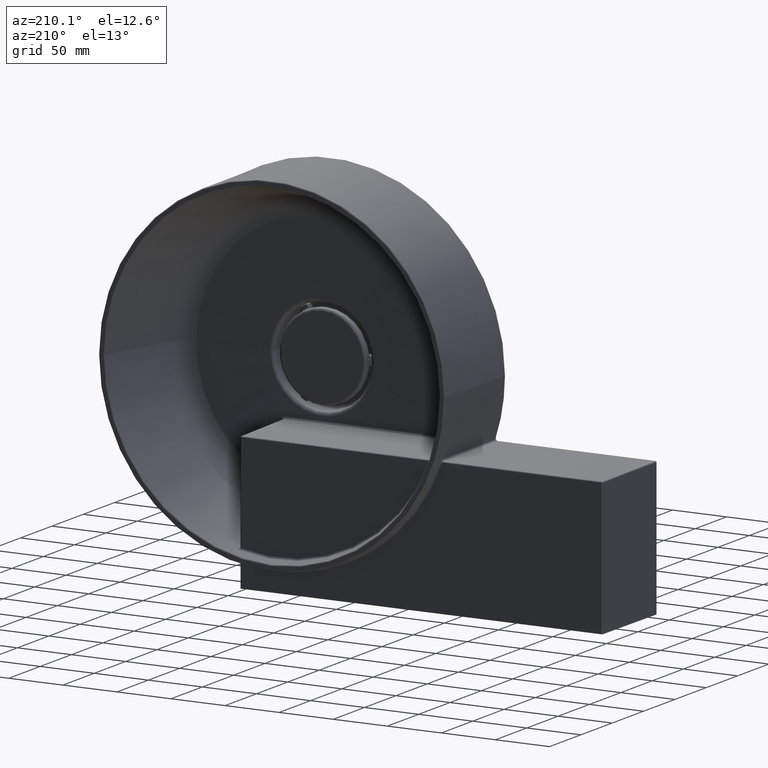
[diagram: clean part render]
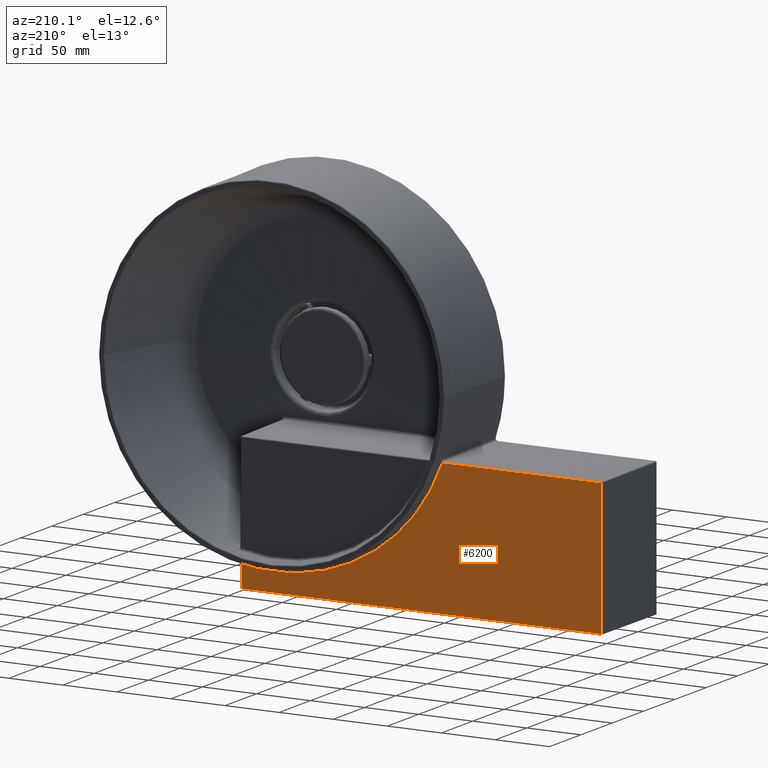
[diagram: same view with one face highlighted and labeled with its STEP entity id]
A machine part, auxiliary view. The second image highlights one B-rep face of the part: STEP entity #6200.
In plain terms, the highlighted planar face has unit normal (0, 1, 0).
Its self-contained STEP definition (entity closure, byte-faithful):
#114 = EDGE_CURVE ( 'NONE', #8028, #2406, #1129, .T. ) ;
#300 = LINE ( 'NONE', #2549, #7651 ) ;
#559 = CARTESIAN_POINT ( 'NONE',  ( 1.303350081333859496E-14, 106.7993909727526614, 0.0000000000000000000 ) ) ;
#604 = CARTESIAN_POINT ( 'NONE',  ( -299.0086887894050847, 106.7993909727527040, -180.0000000000000000 ) ) ;
#626 = DIRECTION ( 'NONE',  ( 1.242786967863980845E-16, 1.000000000000000000, 0.0000000000000000000 ) ) ;
#870 = CIRCLE ( 'NONE', #6311, 162.0612403866282420 ) ;
#1087 = ORIENTED_EDGE ( 'NONE', *, *, #1916, .F. ) ;
#1129 = LINE ( 'NONE', #4097, #3273 ) ;
#1590 = CARTESIAN_POINT ( 'NONE',  ( 34.00868878940502782, 106.7993909727526614, -158.4526892245060594 ) ) ;
#1685 = EDGE_CURVE ( 'NONE', #6741, #2043, #300, .T. ) ;
#1916 = EDGE_CURVE ( 'NONE', #8028, #5031, #1955, .T. ) ;
#1955 = LINE ( 'NONE', #4909, #7513 ) ;
#2043 = VERTEX_POINT ( 'NONE', #9089 ) ;
#2233 = EDGE_CURVE ( 'NONE', #2043, #2406, #9579, .T. ) ;
#2406 = VERTEX_POINT ( 'NONE', #604 ) ;
#2549 = CARTESIAN_POINT ( 'NONE',  ( 1.303350081333859496E-14, 106.7993909727526614, -55.99131121059497218 ) ) ;
#2904 = CARTESIAN_POINT ( 'NONE',  ( -299.0086887894050847, 106.7993909727527040, 0.0000000000000000000 ) ) ;
#2968 = CARTESIAN_POINT ( 'NONE',  ( 34.00868878940502782, 106.7993909727526614, -180.0000000000000000 ) ) ;
#3273 = VECTOR ( 'NONE', #7072, 1000.000000000000000 ) ;
#3527 = DIRECTION ( 'NONE',  ( 1.242786967863980845E-16, 1.000000000000000000, 0.0000000000000000000 ) ) ;
#3591 = DIRECTION ( 'NONE',  ( 1.000000000000000000, -8.563298525117002422E-17, 0.0000000000000000000 ) ) ;
#3989 = EDGE_LOOP ( 'NONE', ( #1087, #8988, #7205, #9479, #5177 ) ) ;
#4097 = CARTESIAN_POINT ( 'NONE',  ( 35.00000000000000711, 106.7993909727526614, -180.0000000000000000 ) ) ;
#4258 = FACE_OUTER_BOUND ( 'NONE', #3989, .T. ) ;
#4759 = CARTESIAN_POINT ( 'NONE',  ( -152.0816185624377397, 106.7993909727526756, -55.99131121059497218 ) ) ;
#4909 = CARTESIAN_POINT ( 'NONE',  ( 34.00868878940502782, 106.7993909727526614, 0.0000000000000000000 ) ) ;
#4987 = EDGE_CURVE ( 'NONE', #5031, #6741, #870, .T. ) ;
#5031 = VERTEX_POINT ( 'NONE', #1590 ) ;
#5177 = ORIENTED_EDGE ( 'NONE', *, *, #4987, .F. ) ;
#5509 = DIRECTION ( 'NONE',  ( -1.000000000000000000, 1.242786967863980845E-16, 1.925929944387235853E-34 ) ) ;
#5878 = DIRECTION ( 'NONE',  ( -0.0000000000000000000, -0.0000000000000000000, -1.000000000000000000 ) ) ;
#6200 = ADVANCED_FACE ( 'NONE', ( #4258 ), #7234, .T. ) ;
#6250 = VECTOR ( 'NONE', #5878, 1000.000000000000000 ) ;
#6311 = AXIS2_PLACEMENT_3D ( 'NONE', #7297, #626, #3591 ) ;
#6498 = DIRECTION ( 'NONE',  ( 1.000000000000000000, -1.242786967863980845E-16, 0.0000000000000000000 ) ) ;
#6741 = VERTEX_POINT ( 'NONE', #4759 ) ;
#7072 = DIRECTION ( 'NONE',  ( -1.000000000000000000, 1.242786967863980845E-16, 0.0000000000000000000 ) ) ;
#7205 = ORIENTED_EDGE ( 'NONE', *, *, #2233, .F. ) ;
#7234 = PLANE ( 'NONE',  #8670 ) ;
#7297 = CARTESIAN_POINT ( 'NONE',  ( -1.283287733955359827E-15, 106.7993909727526614, 0.0000000000000000000 ) ) ;
#7513 = VECTOR ( 'NONE', #7890, 1000.000000000000000 ) ;
#7651 = VECTOR ( 'NONE', #5509, 1000.000000000000000 ) ;
#7890 = DIRECTION ( 'NONE',  ( -0.0000000000000000000, -0.0000000000000000000, 1.000000000000000000 ) ) ;
#8028 = VERTEX_POINT ( 'NONE', #2968 ) ;
#8670 = AXIS2_PLACEMENT_3D ( 'NONE', #559, #3527, #6498 ) ;
#8988 = ORIENTED_EDGE ( 'NONE', *, *, #114, .T. ) ;
#9089 = CARTESIAN_POINT ( 'NONE',  ( -299.0086887894050847, 106.7993909727527040, -55.99131121059497218 ) ) ;
#9479 = ORIENTED_EDGE ( 'NONE', *, *, #1685, .F. ) ;
#9579 = LINE ( 'NONE', #2904, #6250 ) ;